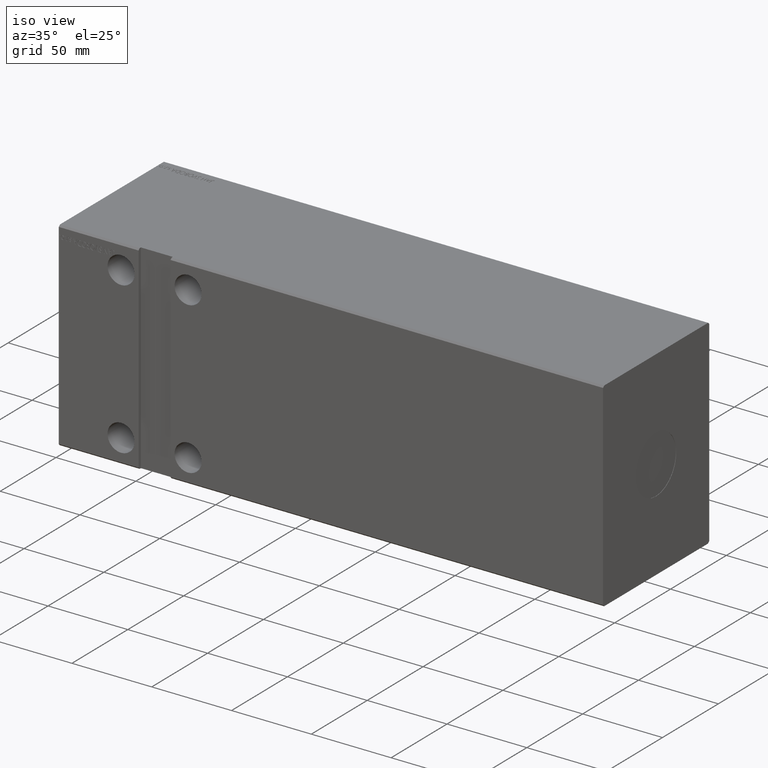
[diagram: clean part render]
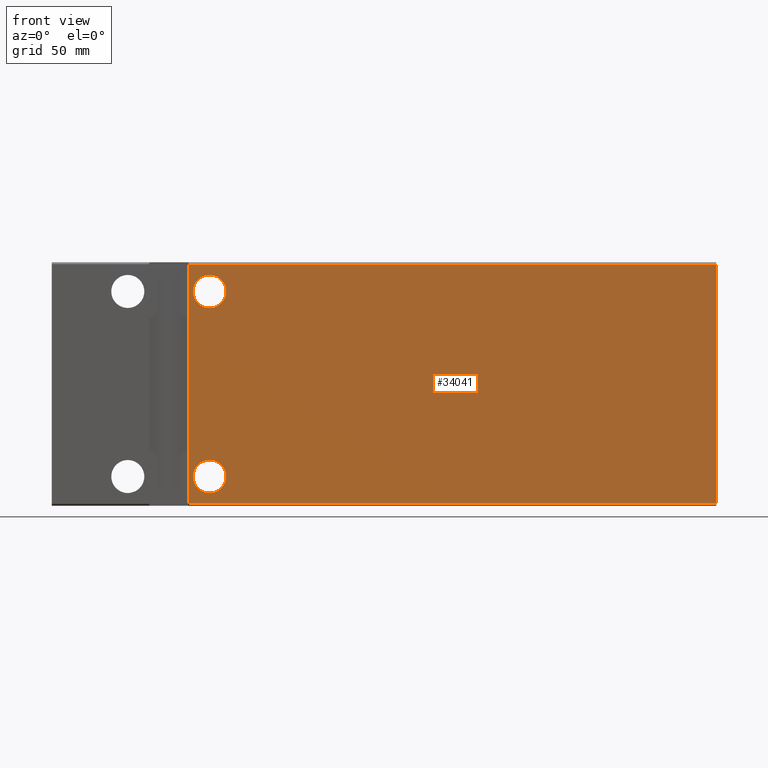
[diagram: tour spotlight — one face highlighted and labeled with its STEP entity id]
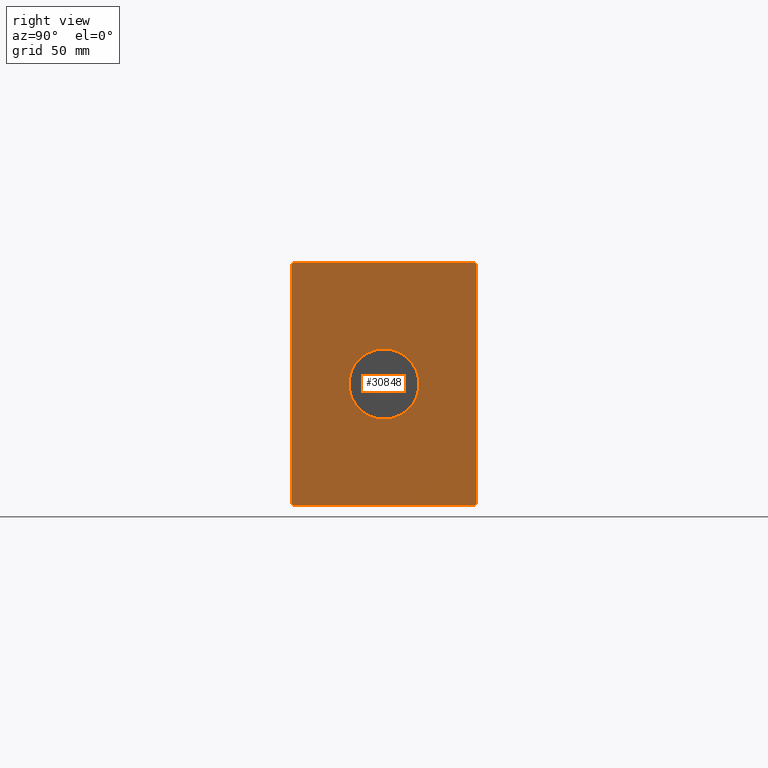
[diagram: tour spotlight — one face highlighted and labeled with its STEP entity id]
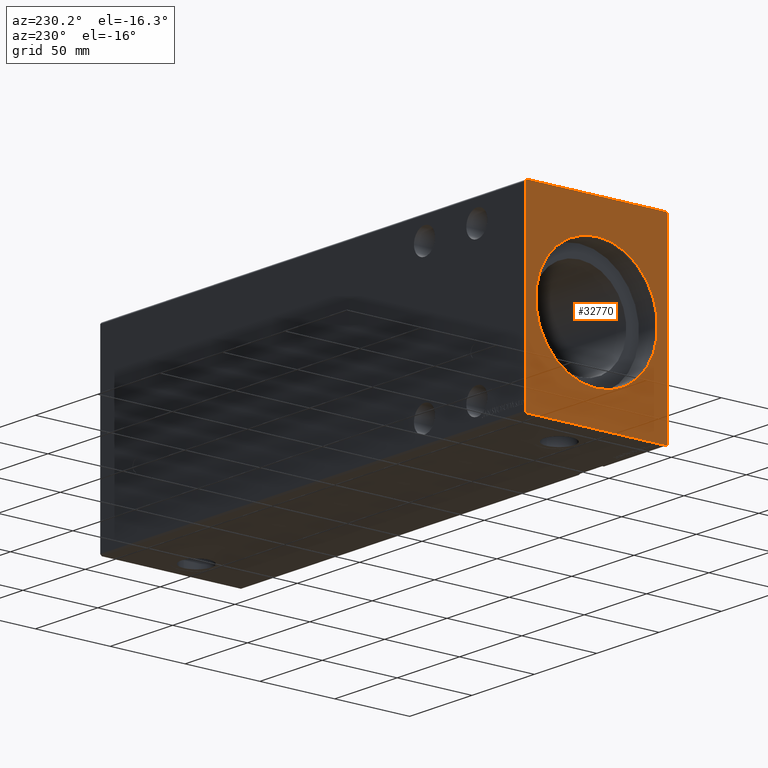
[diagram: tour spotlight — one face highlighted and labeled with its STEP entity id]
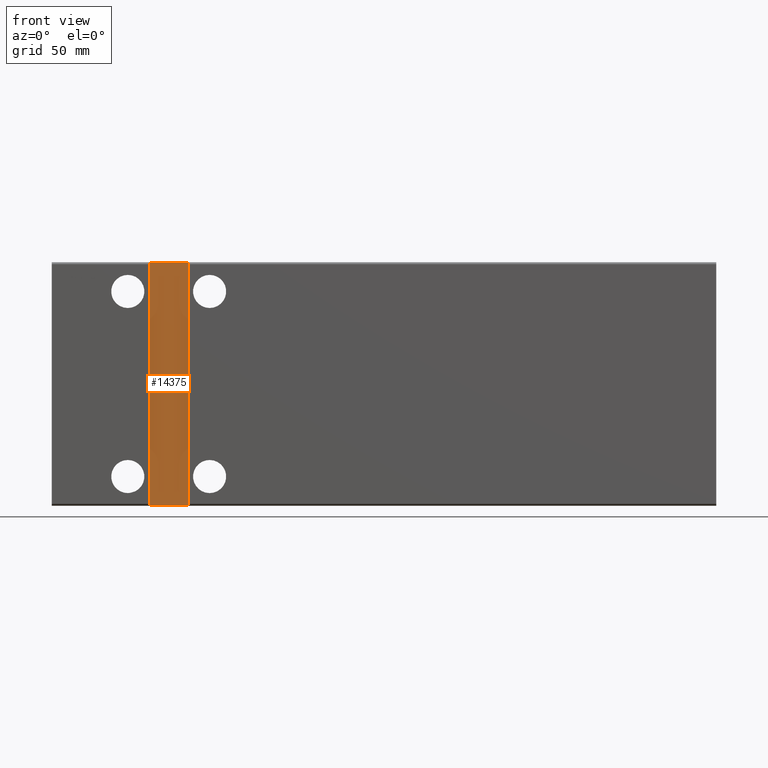
[diagram: tour spotlight — one face highlighted and labeled with its STEP entity id]
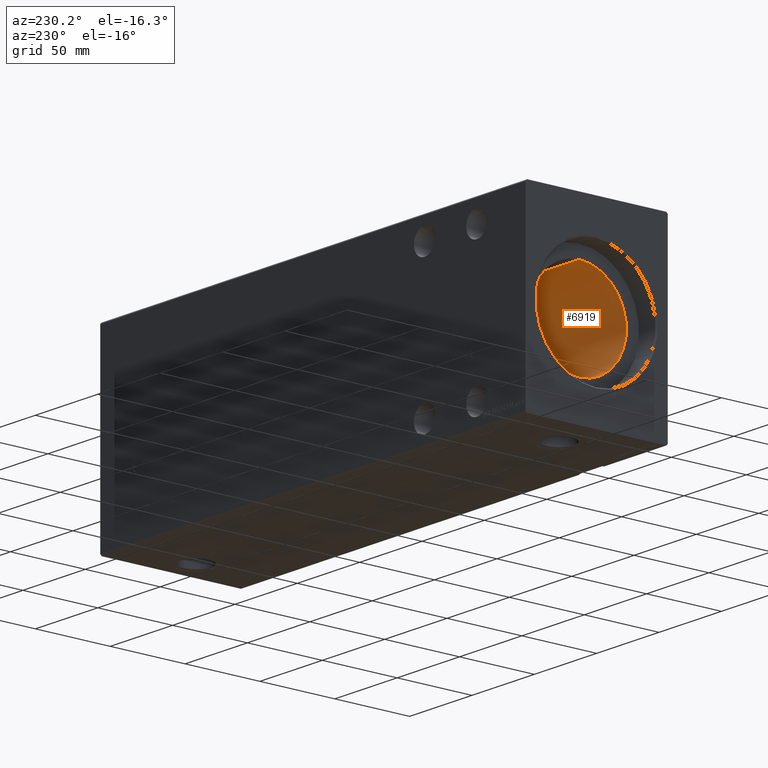
[diagram: tour spotlight — one face highlighted and labeled with its STEP entity id]
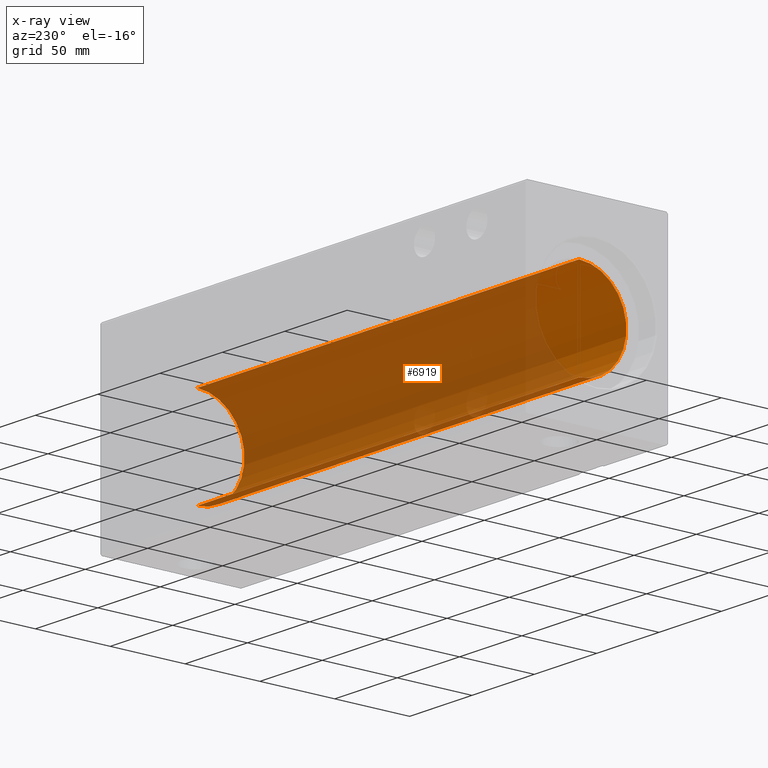
[diagram: x-ray of the same camera — body ghosted, this tour face saturated]
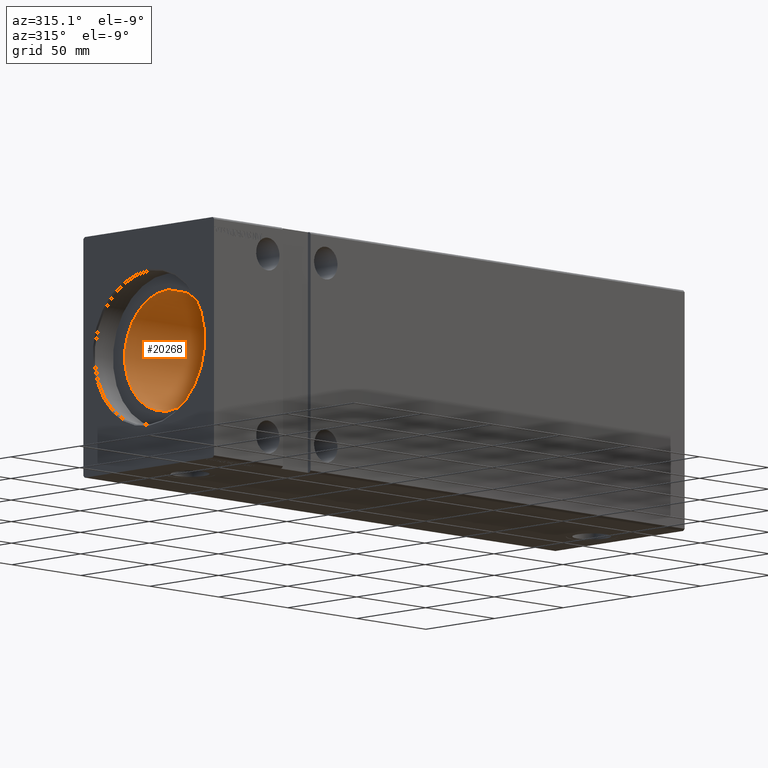
[diagram: tour spotlight — one face highlighted and labeled with its STEP entity id]
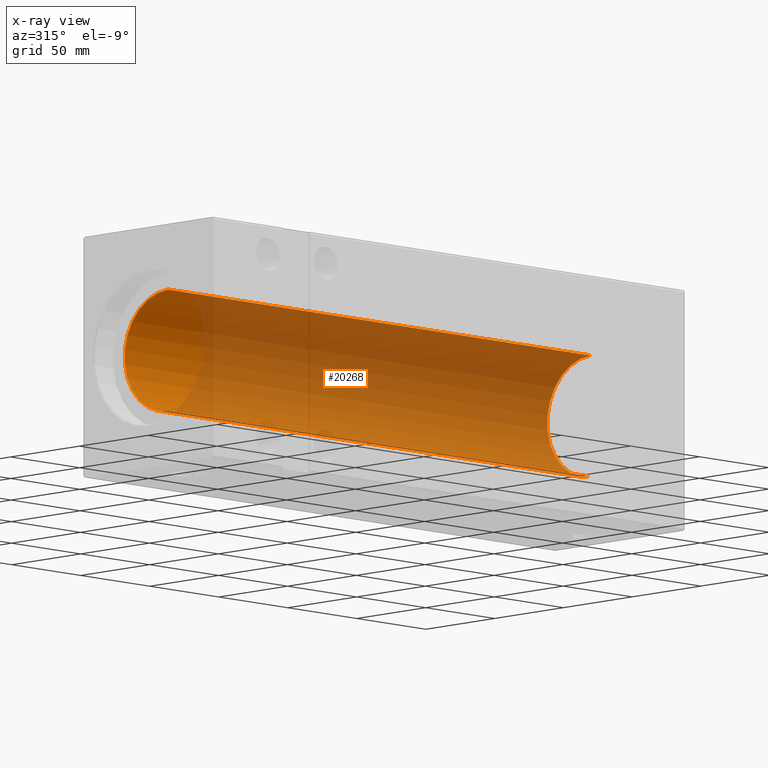
[diagram: x-ray of the same camera — body ghosted, this tour face saturated]
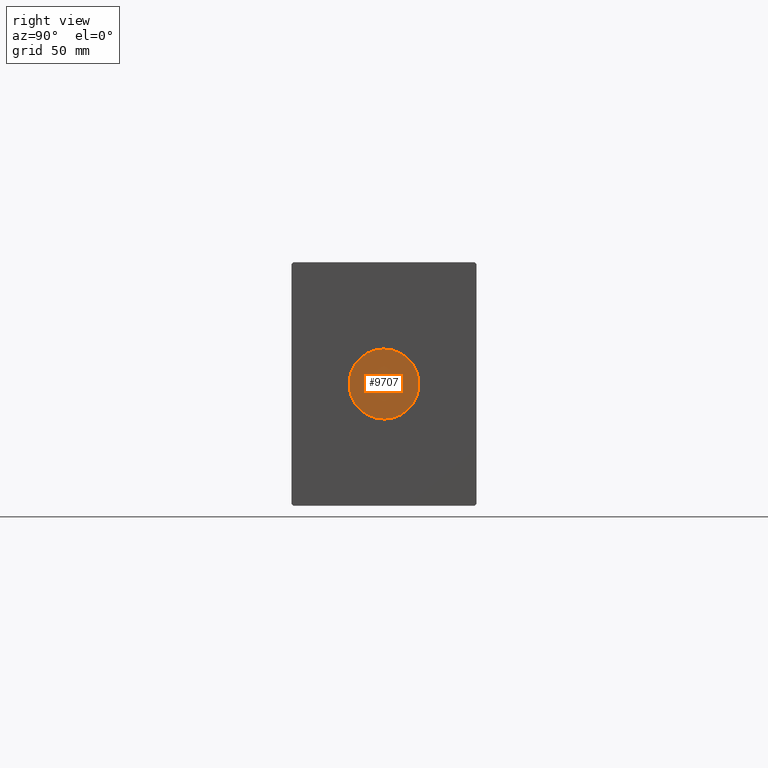
[diagram: tour spotlight — one face highlighted and labeled with its STEP entity id]
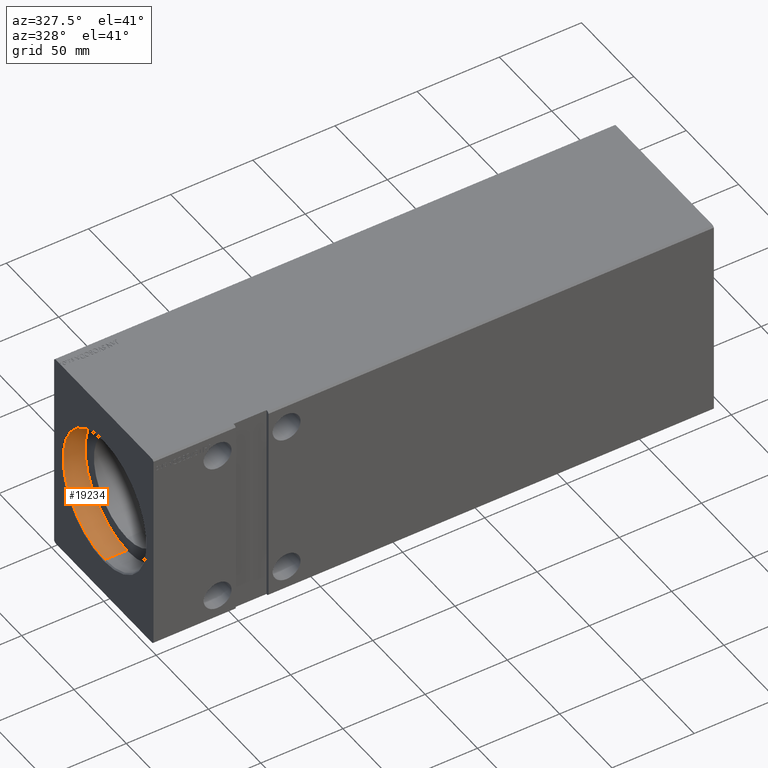
[diagram: tour spotlight — one face highlighted and labeled with its STEP entity id]
A machine part: a face-by-face anatomy tour. The part has 805 B-rep faces; the first image is the clean iso view, then the 8 largest visible faces are spotlighted one at a time (largest first), each with its STEP entity span.

Face 1 — front view, entity #34041. In plain terms, the highlighted planar face has unit normal (-0, 1, 0).
Definition (entity closure, byte-faithful):
#453 = ORIENTED_EDGE ( 'NONE', *, *, #1299, .F. ) ;
#500 = VECTOR ( 'NONE', #3767, 1000.000000000000000 ) ;
#782 = CARTESIAN_POINT ( 'NONE',  ( 70.00000000000000000, -47.50000000000000000, 62.49999999999997868 ) ) ;
#1299 = EDGE_CURVE ( 'NONE', #41389, #40538, #21749, .T. ) ;
#1970 = DIRECTION ( 'NONE',  ( -1.000000000000000000, -0.000000000000000000, -0.000000000000000000 ) ) ;
#2248 = LINE ( 'NONE', #2861, #37254 ) ;
#2770 = EDGE_CURVE ( 'NONE', #19334, #20825, #14287, .T. ) ;
#2861 = CARTESIAN_POINT ( 'NONE',  ( 341.0000000000000000, -47.50000000000001421, 61.49999999999997868 ) ) ;
#3258 = VERTEX_POINT ( 'NONE', #21459 ) ;
#3767 = DIRECTION ( 'NONE',  ( -2.220446049250313081E-16, -0.000000000000000000, 1.000000000000000000 ) ) ;
#4053 = FACE_BOUND ( 'NONE', #22180, .T. ) ;
#6550 = CIRCLE ( 'NONE', #41300, 8.500000000000000000 ) ;
#6947 = CARTESIAN_POINT ( 'NONE',  ( 81.00000000000000000, -47.50000000000001421, 38.99999999999999289 ) ) ;
#6989 = CARTESIAN_POINT ( 'NONE',  ( 81.00000000000000000, -47.50000000000001421, 55.99999999999999289 ) ) ;
#7255 = CARTESIAN_POINT ( 'NONE',  ( 341.0000000000000000, -47.50000000000001421, 61.49999999999997868 ) ) ;
#10553 = VERTEX_POINT ( 'NONE', #37784 ) ;
#10913 = CARTESIAN_POINT ( 'NONE',  ( 81.00000000000000000, -47.50000000000001421, 47.49999999999999289 ) ) ;
#12028 = CARTESIAN_POINT ( 'NONE',  ( 341.0000000000000000, -47.49999999999999289, -61.50000000000001421 ) ) ;
#12825 = VERTEX_POINT ( 'NONE', #13407 ) ;
#13407 = CARTESIAN_POINT ( 'NONE',  ( 341.0000000000000000, -47.49999999999999289, -61.50000000000001421 ) ) ;
#13901 = AXIS2_PLACEMENT_3D ( 'NONE', #17746, #40988, #14766 ) ;
#14287 = CIRCLE ( 'NONE', #19725, 8.500000000000007105 ) ;
#14766 = DIRECTION ( 'NONE',  ( 0.000000000000000000, 0.000000000000000000, 1.000000000000000000 ) ) ;
#15431 = LINE ( 'NONE', #12028, #37772 ) ;
#16184 = ORIENTED_EDGE ( 'NONE', *, *, #2770, .T. ) ;
#16218 = DIRECTION ( 'NONE',  ( -0.000000000000000000, 1.000000000000000000, 1.692413147294446463E-16 ) ) ;
#16636 = DIRECTION ( 'NONE',  ( 0.000000000000000000, -1.692413147294446463E-16, 1.000000000000000000 ) ) ;
#16785 = EDGE_CURVE ( 'NONE', #10553, #3258, #30769, .T. ) ;
#16962 = EDGE_LOOP ( 'NONE', ( #16184, #27053 ) ) ;
#17290 = ORIENTED_EDGE ( 'NONE', *, *, #32681, .F. ) ;
#17423 = DIRECTION ( 'NONE',  ( 0.000000000000000000, 0.000000000000000000, 1.000000000000000000 ) ) ;
#17527 = DIRECTION ( 'NONE',  ( 0.000000000000000000, 0.000000000000000000, 1.000000000000000000 ) ) ;
#17746 = CARTESIAN_POINT ( 'NONE',  ( 81.00000000000001421, -47.50000000000000000, -47.50000000000000711 ) ) ;
#18491 = EDGE_CURVE ( 'NONE', #10553, #12825, #2248, .T. ) ;
#19334 = VERTEX_POINT ( 'NONE', #33573 ) ;
#19700 = AXIS2_PLACEMENT_3D ( 'NONE', #36830, #30017, #17423 ) ;
#19725 = AXIS2_PLACEMENT_3D ( 'NONE', #25616, #16218, #29237 ) ;
#19759 = EDGE_CURVE ( 'NONE', #37350, #3258, #32988, .T. ) ;
#19796 = ORIENTED_EDGE ( 'NONE', *, *, #16785, .T. ) ;
#19842 = PLANE ( 'NONE',  #30271 ) ;
#20456 = CARTESIAN_POINT ( 'NONE',  ( 81.00000000000001421, -47.50000000000000000, -39.00000000000000000 ) ) ;
#20825 = VERTEX_POINT ( 'NONE', #20456 ) ;
#21459 = CARTESIAN_POINT ( 'NONE',  ( 70.00000000000000000, -47.50000000000000000, 61.49999999999999289 ) ) ;
#21749 = CIRCLE ( 'NONE', #19700, 8.500000000000000000 ) ;
#22180 = EDGE_LOOP ( 'NONE', ( #453, #17290 ) ) ;
#23037 = FACE_OUTER_BOUND ( 'NONE', #29331, .T. ) ;
#23245 = FACE_BOUND ( 'NONE', #16962, .T. ) ;
#23447 = CARTESIAN_POINT ( 'NONE',  ( 70.00000000000002842, -47.50000000000000000, -61.50000000000002132 ) ) ;
#25616 = CARTESIAN_POINT ( 'NONE',  ( 81.00000000000001421, -47.50000000000000000, -47.50000000000000711 ) ) ;
#26656 = EDGE_CURVE ( 'NONE', #12825, #37350, #15431, .T. ) ;
#27053 = ORIENTED_EDGE ( 'NONE', *, *, #38553, .T. ) ;
#28186 = CARTESIAN_POINT ( 'NONE',  ( 341.0000000000000000, -47.50000000000001421, 61.49999999999997868 ) ) ;
#29237 = DIRECTION ( 'NONE',  ( 0.000000000000000000, 0.000000000000000000, 1.000000000000000000 ) ) ;
#29331 = EDGE_LOOP ( 'NONE', ( #19796, #32548, #29683, #39267 ) ) ;
#29683 = ORIENTED_EDGE ( 'NONE', *, *, #26656, .F. ) ;
#30017 = DIRECTION ( 'NONE',  ( 0.000000000000000000, -1.000000000000000000, -1.692413147294446463E-16 ) ) ;
#30087 = DIRECTION ( 'NONE',  ( -0.000000000000000000, 1.000000000000000000, 1.692413147294446463E-16 ) ) ;
#30271 = AXIS2_PLACEMENT_3D ( 'NONE', #7255, #30087, #16636 ) ;
#30769 = LINE ( 'NONE', #28186, #35700 ) ;
#31645 = DIRECTION ( 'NONE',  ( -1.000000000000000000, -0.000000000000000000, -0.000000000000000000 ) ) ;
#32293 = CIRCLE ( 'NONE', #13901, 8.500000000000007105 ) ;
#32548 = ORIENTED_EDGE ( 'NONE', *, *, #19759, .F. ) ;
#32681 = EDGE_CURVE ( 'NONE', #40538, #41389, #6550, .T. ) ;
#32988 = LINE ( 'NONE', #782, #500 ) ;
#33573 = CARTESIAN_POINT ( 'NONE',  ( 81.00000000000001421, -47.50000000000000000, -56.00000000000001421 ) ) ;
#33743 = DIRECTION ( 'NONE',  ( 0.000000000000000000, -1.000000000000000000, -1.692413147294446463E-16 ) ) ;
#34041 = ADVANCED_FACE ( 'NONE', ( #23245, #23037, #4053 ), #19842, .F. ) ;
#35700 = VECTOR ( 'NONE', #1970, 1000.000000000000000 ) ;
#36830 = CARTESIAN_POINT ( 'NONE',  ( 81.00000000000000000, -47.50000000000001421, 47.49999999999999289 ) ) ;
#37254 = VECTOR ( 'NONE', #41277, 1000.000000000000000 ) ;
#37350 = VERTEX_POINT ( 'NONE', #23447 ) ;
#37772 = VECTOR ( 'NONE', #31645, 1000.000000000000000 ) ;
#37784 = CARTESIAN_POINT ( 'NONE',  ( 341.0000000000000000, -47.50000000000001421, 61.49999999999997868 ) ) ;
#38553 = EDGE_CURVE ( 'NONE', #20825, #19334, #32293, .T. ) ;
#39267 = ORIENTED_EDGE ( 'NONE', *, *, #18491, .F. ) ;
#40538 = VERTEX_POINT ( 'NONE', #6989 ) ;
#40988 = DIRECTION ( 'NONE',  ( -0.000000000000000000, 1.000000000000000000, 1.692413147294446463E-16 ) ) ;
#41277 = DIRECTION ( 'NONE',  ( 0.000000000000000000, 1.692413147294445970E-16, -1.000000000000000000 ) ) ;
#41300 = AXIS2_PLACEMENT_3D ( 'NONE', #10913, #33743, #17527 ) ;
#41389 = VERTEX_POINT ( 'NONE', #6947 ) ;

Face 2 — right view, entity #30848. In plain terms, the highlighted planar face has unit normal (1, 0, 0).
Definition (entity closure, byte-faithful):
#853 = CARTESIAN_POINT ( 'NONE',  ( 341.0000000000000000, -46.50000000000001421, 62.49999999999997868 ) ) ;
#1159 = DIRECTION ( 'NONE',  ( 0.000000000000000000, -1.128275431529630729E-16, 1.000000000000000000 ) ) ;
#1303 = CARTESIAN_POINT ( 'NONE',  ( 341.0000000000000000, -46.50000000000000000, -62.50000000000001421 ) ) ;
#1737 = DIRECTION ( 'NONE',  ( 0.000000000000000000, 0.000000000000000000, -1.000000000000000000 ) ) ;
#2248 = LINE ( 'NONE', #2861, #37254 ) ;
#2295 = CARTESIAN_POINT ( 'NONE',  ( 341.0000000000000000, 47.50000000000001421, -61.50000000000001421 ) ) ;
#2861 = CARTESIAN_POINT ( 'NONE',  ( 341.0000000000000000, -47.50000000000001421, 61.49999999999997868 ) ) ;
#3038 = LINE ( 'NONE', #35452, #36383 ) ;
#3500 = CIRCLE ( 'NONE', #27346, 18.00000000000000000 ) ;
#3598 = EDGE_CURVE ( 'NONE', #13685, #18179, #24594, .T. ) ;
#5198 = DIRECTION ( 'NONE',  ( 0.000000000000000000, 0.7071067811865574537, 0.7071067811865376918 ) ) ;
#5346 = DIRECTION ( 'NONE',  ( 1.000000000000000000, 0.000000000000000000, 0.000000000000000000 ) ) ;
#5746 = VERTEX_POINT ( 'NONE', #853 ) ;
#5798 = DIRECTION ( 'NONE',  ( 1.000000000000000000, 0.000000000000000000, 0.000000000000000000 ) ) ;
#7002 = CIRCLE ( 'NONE', #32206, 18.00000000000000000 ) ;
#7279 = CARTESIAN_POINT ( 'NONE',  ( 341.0000000000000000, 47.50000000000000000, 61.49999999999998579 ) ) ;
#7747 = ORIENTED_EDGE ( 'NONE', *, *, #8797, .F. ) ;
#8467 = EDGE_LOOP ( 'NONE', ( #15566, #19582, #8971, #26885, #26001, #21227, #21168, #19913 ) ) ;
#8529 = CARTESIAN_POINT ( 'NONE',  ( 341.0000000000000000, 47.50000000000000000, 61.49999999999998579 ) ) ;
#8594 = VERTEX_POINT ( 'NONE', #33997 ) ;
#8760 = EDGE_CURVE ( 'NONE', #30485, #30048, #16664, .T. ) ;
#8797 = EDGE_CURVE ( 'NONE', #8594, #24473, #3500, .T. ) ;
#8971 = ORIENTED_EDGE ( 'NONE', *, *, #31391, .T. ) ;
#9056 = VECTOR ( 'NONE', #36757, 1000.000000000000114 ) ;
#9113 = VECTOR ( 'NONE', #1159, 1000.000000000000000 ) ;
#10553 = VERTEX_POINT ( 'NONE', #37784 ) ;
#10750 = CARTESIAN_POINT ( 'NONE',  ( 341.0000000000000000, 47.50000000000001421, -61.50000000000001421 ) ) ;
#10890 = LINE ( 'NONE', #1303, #20877 ) ;
#11096 = DIRECTION ( 'NONE',  ( 0.000000000000000000, -0.7071067811865474617, -0.7071067811865474617 ) ) ;
#11665 = DIRECTION ( 'NONE',  ( 1.000000000000000000, 0.000000000000000000, 0.000000000000000000 ) ) ;
#12397 = DIRECTION ( 'NONE',  ( 0.000000000000000000, 0.000000000000000000, -1.000000000000000000 ) ) ;
#12589 = EDGE_CURVE ( 'NONE', #24473, #8594, #7002, .T. ) ;
#12825 = VERTEX_POINT ( 'NONE', #13407 ) ;
#13168 = EDGE_CURVE ( 'NONE', #12825, #33170, #33146, .T. ) ;
#13407 = CARTESIAN_POINT ( 'NONE',  ( 341.0000000000000000, -47.49999999999999289, -61.50000000000001421 ) ) ;
#13469 = DIRECTION ( 'NONE',  ( 0.000000000000000000, -0.7071067811865474617, 0.7071067811865474617 ) ) ;
#13685 = VERTEX_POINT ( 'NONE', #32873 ) ;
#14337 = ORIENTED_EDGE ( 'NONE', *, *, #12589, .F. ) ;
#14343 = CARTESIAN_POINT ( 'NONE',  ( 341.0000000000000000, 46.50000000000000000, 62.49999999999998579 ) ) ;
#15077 = DIRECTION ( 'NONE',  ( 0.000000000000000000, 0.000000000000000000, -1.000000000000000000 ) ) ;
#15252 = EDGE_CURVE ( 'NONE', #18179, #30485, #29519, .T. ) ;
#15566 = ORIENTED_EDGE ( 'NONE', *, *, #8760, .T. ) ;
#16664 = LINE ( 'NONE', #7279, #34838 ) ;
#16863 = CARTESIAN_POINT ( 'NONE',  ( 341.0000000000000000, -46.50000000000001421, 62.49999999999997868 ) ) ;
#17499 = DIRECTION ( 'NONE',  ( 0.000000000000000000, 1.000000000000000000, 1.492235248152092278E-16 ) ) ;
#18179 = VERTEX_POINT ( 'NONE', #2295 ) ;
#18491 = EDGE_CURVE ( 'NONE', #10553, #12825, #2248, .T. ) ;
#19582 = ORIENTED_EDGE ( 'NONE', *, *, #25917, .T. ) ;
#19913 = ORIENTED_EDGE ( 'NONE', *, *, #15252, .T. ) ;
#20765 = CARTESIAN_POINT ( 'NONE',  ( 341.0000000000000000, -47.49999999999999289, -61.50000000000001421 ) ) ;
#20877 = VECTOR ( 'NONE', #17499, 1000.000000000000000 ) ;
#21168 = ORIENTED_EDGE ( 'NONE', *, *, #3598, .T. ) ;
#21227 = ORIENTED_EDGE ( 'NONE', *, *, #31384, .T. ) ;
#24256 = CARTESIAN_POINT ( 'NONE',  ( 341.0000000000000000, 0.000000000000000000, 0.000000000000000000 ) ) ;
#24473 = VERTEX_POINT ( 'NONE', #33404 ) ;
#24594 = LINE ( 'NONE', #34001, #37485 ) ;
#24884 = PLANE ( 'NONE',  #29672 ) ;
#25917 = EDGE_CURVE ( 'NONE', #30048, #5746, #3038, .T. ) ;
#26001 = ORIENTED_EDGE ( 'NONE', *, *, #13168, .T. ) ;
#26885 = ORIENTED_EDGE ( 'NONE', *, *, #18491, .T. ) ;
#27346 = AXIS2_PLACEMENT_3D ( 'NONE', #34572, #5346, #1737 ) ;
#29519 = LINE ( 'NONE', #10750, #9113 ) ;
#29672 = AXIS2_PLACEMENT_3D ( 'NONE', #24256, #11665, #15077 ) ;
#30048 = VERTEX_POINT ( 'NONE', #14343 ) ;
#30405 = EDGE_LOOP ( 'NONE', ( #14337, #7747 ) ) ;
#30417 = VECTOR ( 'NONE', #11096, 1000.000000000000114 ) ;
#30485 = VERTEX_POINT ( 'NONE', #8529 ) ;
#30848 = ADVANCED_FACE ( 'NONE', ( #37276, #37908 ), #24884, .T. ) ;
#31384 = EDGE_CURVE ( 'NONE', #33170, #13685, #10890, .T. ) ;
#31391 = EDGE_CURVE ( 'NONE', #5746, #10553, #36270, .T. ) ;
#32206 = AXIS2_PLACEMENT_3D ( 'NONE', #35014, #5798, #12397 ) ;
#32873 = CARTESIAN_POINT ( 'NONE',  ( 341.0000000000000000, 46.50000000000000000, -62.50000000000000000 ) ) ;
#32899 = CARTESIAN_POINT ( 'NONE',  ( 341.0000000000000000, -46.50000000000000000, -62.50000000000001421 ) ) ;
#33146 = LINE ( 'NONE', #20765, #9056 ) ;
#33170 = VERTEX_POINT ( 'NONE', #32899 ) ;
#33404 = CARTESIAN_POINT ( 'NONE',  ( 341.0000000000000000, 0.000000000000000000, -18.00000000000000000 ) ) ;
#33997 = CARTESIAN_POINT ( 'NONE',  ( 341.0000000000000000, 2.204364238465235428E-15, 18.00000000000000000 ) ) ;
#34001 = CARTESIAN_POINT ( 'NONE',  ( 341.0000000000000000, 46.50000000000000000, -62.50000000000000000 ) ) ;
#34572 = CARTESIAN_POINT ( 'NONE',  ( 341.0000000000000000, 0.000000000000000000, 0.000000000000000000 ) ) ;
#34838 = VECTOR ( 'NONE', #13469, 1000.000000000000114 ) ;
#35014 = CARTESIAN_POINT ( 'NONE',  ( 341.0000000000000000, 0.000000000000000000, 0.000000000000000000 ) ) ;
#35452 = CARTESIAN_POINT ( 'NONE',  ( 341.0000000000000000, 46.50000000000000000, 62.49999999999998579 ) ) ;
#35655 = DIRECTION ( 'NONE',  ( 0.000000000000000000, -1.000000000000000000, -7.461176240760460157E-17 ) ) ;
#36270 = LINE ( 'NONE', #16863, #30417 ) ;
#36383 = VECTOR ( 'NONE', #35655, 1000.000000000000000 ) ;
#36757 = DIRECTION ( 'NONE',  ( 0.000000000000000000, 0.7071067811865451302, -0.7071067811865500152 ) ) ;
#37254 = VECTOR ( 'NONE', #41277, 1000.000000000000000 ) ;
#37276 = FACE_BOUND ( 'NONE', #30405, .T. ) ;
#37485 = VECTOR ( 'NONE', #5198, 999.9999999999998863 ) ;
#37784 = CARTESIAN_POINT ( 'NONE',  ( 341.0000000000000000, -47.50000000000001421, 61.49999999999997868 ) ) ;
#37908 = FACE_OUTER_BOUND ( 'NONE', #8467, .T. ) ;
#41277 = DIRECTION ( 'NONE',  ( 0.000000000000000000, 1.692413147294445970E-16, -1.000000000000000000 ) ) ;

Face 3 — auxiliary view, entity #32770. In plain terms, the highlighted planar face has unit normal (1, 0, 0).
Definition (entity closure, byte-faithful):
#129 = VERTEX_POINT ( 'NONE', #27334 ) ;
#291 = CARTESIAN_POINT ( 'NONE',  ( 0.000000000000000000, -46.50000000000001421, 62.49999999999997868 ) ) ;
#561 = EDGE_CURVE ( 'NONE', #4607, #14561, #28288, .T. ) ;
#1548 = LINE ( 'NONE', #23722, #26842 ) ;
#1784 = ORIENTED_EDGE ( 'NONE', *, *, #28578, .F. ) ;
#2949 = CARTESIAN_POINT ( 'NONE',  ( 0.000000000000000000, 46.50000000000000000, 62.49999999999998579 ) ) ;
#3136 = DIRECTION ( 'NONE',  ( 1.000000000000000000, 0.000000000000000000, 0.000000000000000000 ) ) ;
#3137 = EDGE_LOOP ( 'NONE', ( #32295, #28400 ) ) ;
#3624 = LINE ( 'NONE', #6613, #15356 ) ;
#4515 = AXIS2_PLACEMENT_3D ( 'NONE', #38399, #25174, #18161 ) ;
#4607 = VERTEX_POINT ( 'NONE', #7077 ) ;
#4783 = VERTEX_POINT ( 'NONE', #13003 ) ;
#5722 = DIRECTION ( 'NONE',  ( 0.000000000000000000, 1.000000000000000000, 1.492235248152092278E-16 ) ) ;
#6327 = CARTESIAN_POINT ( 'NONE',  ( 0.000000000000000000, 0.000000000000000000, 0.000000000000000000 ) ) ;
#6477 = VERTEX_POINT ( 'NONE', #16256 ) ;
#6613 = CARTESIAN_POINT ( 'NONE',  ( 0.000000000000000000, 47.50000000000001421, -61.50000000000001421 ) ) ;
#7077 = CARTESIAN_POINT ( 'NONE',  ( 0.000000000000000000, -47.50000000000001421, 61.49999999999997868 ) ) ;
#8181 = CARTESIAN_POINT ( 'NONE',  ( 0.000000000000000000, 46.50000000000000000, 62.49999999999998579 ) ) ;
#8562 = FACE_BOUND ( 'NONE', #3137, .T. ) ;
#8604 = DIRECTION ( 'NONE',  ( 0.000000000000000000, -1.000000000000000000, -7.461176240760460157E-17 ) ) ;
#9360 = LINE ( 'NONE', #21934, #10062 ) ;
#9846 = AXIS2_PLACEMENT_3D ( 'NONE', #6327, #3136, #16132 ) ;
#10062 = VECTOR ( 'NONE', #5722, 1000.000000000000000 ) ;
#11235 = DIRECTION ( 'NONE',  ( 0.000000000000000000, 1.692413147294445970E-16, -1.000000000000000000 ) ) ;
#11556 = DIRECTION ( 'NONE',  ( 0.000000000000000000, 0.7071067811865574537, 0.7071067811865376918 ) ) ;
#13003 = CARTESIAN_POINT ( 'NONE',  ( 0.000000000000000000, 46.50000000000000000, -62.50000000000000000 ) ) ;
#13880 = VECTOR ( 'NONE', #19916, 1000.000000000000114 ) ;
#14465 = ORIENTED_EDGE ( 'NONE', *, *, #21754, .F. ) ;
#14521 = VERTEX_POINT ( 'NONE', #19860 ) ;
#14561 = VERTEX_POINT ( 'NONE', #36067 ) ;
#14712 = DIRECTION ( 'NONE',  ( 0.000000000000000000, 0.000000000000000000, -1.000000000000000000 ) ) ;
#15338 = EDGE_CURVE ( 'NONE', #14561, #6477, #32722, .T. ) ;
#15356 = VECTOR ( 'NONE', #16625, 1000.000000000000000 ) ;
#15409 = EDGE_CURVE ( 'NONE', #29545, #17071, #24792, .T. ) ;
#15688 = ORIENTED_EDGE ( 'NONE', *, *, #38516, .F. ) ;
#16132 = DIRECTION ( 'NONE',  ( 0.000000000000000000, 0.000000000000000000, -1.000000000000000000 ) ) ;
#16256 = CARTESIAN_POINT ( 'NONE',  ( 0.000000000000000000, -46.50000000000000000, -62.50000000000001421 ) ) ;
#16625 = DIRECTION ( 'NONE',  ( 0.000000000000000000, -1.128275431529630729E-16, 1.000000000000000000 ) ) ;
#17071 = VERTEX_POINT ( 'NONE', #17490 ) ;
#17091 = CARTESIAN_POINT ( 'NONE',  ( 0.000000000000000000, 47.50000000000001421, -61.50000000000001421 ) ) ;
#17232 = ORIENTED_EDGE ( 'NONE', *, *, #15409, .F. ) ;
#17490 = CARTESIAN_POINT ( 'NONE',  ( 0.000000000000000000, -46.50000000000001421, 62.49999999999997868 ) ) ;
#17800 = LINE ( 'NONE', #24198, #27606 ) ;
#18161 = DIRECTION ( 'NONE',  ( 0.000000000000000000, 0.000000000000000000, -1.000000000000000000 ) ) ;
#18457 = ORIENTED_EDGE ( 'NONE', *, *, #15338, .F. ) ;
#18610 = EDGE_CURVE ( 'NONE', #17071, #4607, #20128, .T. ) ;
#19084 = VERTEX_POINT ( 'NONE', #21078 ) ;
#19860 = CARTESIAN_POINT ( 'NONE',  ( 0.000000000000000000, 0.000000000000000000, 40.69999999999990337 ) ) ;
#19916 = DIRECTION ( 'NONE',  ( 0.000000000000000000, 0.7071067811865451302, -0.7071067811865500152 ) ) ;
#20047 = CIRCLE ( 'NONE', #9846, 40.69999999999990337 ) ;
#20107 = CIRCLE ( 'NONE', #28304, 40.69999999999990337 ) ;
#20128 = LINE ( 'NONE', #291, #38596 ) ;
#20425 = VERTEX_POINT ( 'NONE', #17091 ) ;
#20799 = DIRECTION ( 'NONE',  ( 0.000000000000000000, -0.7071067811865474617, 0.7071067811865474617 ) ) ;
#21078 = CARTESIAN_POINT ( 'NONE',  ( 0.000000000000000000, 4.984312472529715481E-15, -40.69999999999990337 ) ) ;
#21468 = CARTESIAN_POINT ( 'NONE',  ( 0.000000000000000000, -47.50000000000001421, 61.49999999999997868 ) ) ;
#21754 = EDGE_CURVE ( 'NONE', #6477, #4783, #9360, .T. ) ;
#21934 = CARTESIAN_POINT ( 'NONE',  ( 0.000000000000000000, -46.50000000000000000, -62.50000000000001421 ) ) ;
#22998 = EDGE_CURVE ( 'NONE', #19084, #14521, #20047, .T. ) ;
#23699 = VECTOR ( 'NONE', #11235, 1000.000000000000000 ) ;
#23722 = CARTESIAN_POINT ( 'NONE',  ( 0.000000000000000000, 46.50000000000000000, -62.50000000000000000 ) ) ;
#23783 = ORIENTED_EDGE ( 'NONE', *, *, #29162, .F. ) ;
#24198 = CARTESIAN_POINT ( 'NONE',  ( 0.000000000000000000, 47.50000000000000000, 61.49999999999998579 ) ) ;
#24792 = LINE ( 'NONE', #8181, #41798 ) ;
#25174 = DIRECTION ( 'NONE',  ( 1.000000000000000000, 0.000000000000000000, 0.000000000000000000 ) ) ;
#25380 = PLANE ( 'NONE',  #4515 ) ;
#26418 = ORIENTED_EDGE ( 'NONE', *, *, #561, .F. ) ;
#26842 = VECTOR ( 'NONE', #11556, 999.9999999999998863 ) ;
#27334 = CARTESIAN_POINT ( 'NONE',  ( 0.000000000000000000, 47.50000000000000000, 61.49999999999998579 ) ) ;
#27606 = VECTOR ( 'NONE', #20799, 1000.000000000000114 ) ;
#28288 = LINE ( 'NONE', #21468, #23699 ) ;
#28304 = AXIS2_PLACEMENT_3D ( 'NONE', #30704, #37521, #14712 ) ;
#28400 = ORIENTED_EDGE ( 'NONE', *, *, #22998, .T. ) ;
#28578 = EDGE_CURVE ( 'NONE', #20425, #129, #3624, .T. ) ;
#28726 = EDGE_CURVE ( 'NONE', #14521, #19084, #20107, .T. ) ;
#29162 = EDGE_CURVE ( 'NONE', #129, #29545, #17800, .T. ) ;
#29545 = VERTEX_POINT ( 'NONE', #2949 ) ;
#30704 = CARTESIAN_POINT ( 'NONE',  ( 0.000000000000000000, 0.000000000000000000, 0.000000000000000000 ) ) ;
#30897 = EDGE_LOOP ( 'NONE', ( #23783, #1784, #15688, #14465, #18457, #26418, #31207, #17232 ) ) ;
#31207 = ORIENTED_EDGE ( 'NONE', *, *, #18610, .F. ) ;
#32295 = ORIENTED_EDGE ( 'NONE', *, *, #28726, .T. ) ;
#32722 = LINE ( 'NONE', #36331, #13880 ) ;
#32770 = ADVANCED_FACE ( 'NONE', ( #8562, #34370 ), #25380, .F. ) ;
#32925 = DIRECTION ( 'NONE',  ( 0.000000000000000000, -0.7071067811865474617, -0.7071067811865474617 ) ) ;
#34370 = FACE_OUTER_BOUND ( 'NONE', #30897, .T. ) ;
#36067 = CARTESIAN_POINT ( 'NONE',  ( 0.000000000000000000, -47.49999999999999289, -61.50000000000001421 ) ) ;
#36331 = CARTESIAN_POINT ( 'NONE',  ( 0.000000000000000000, -47.49999999999999289, -61.50000000000001421 ) ) ;
#37521 = DIRECTION ( 'NONE',  ( 1.000000000000000000, 0.000000000000000000, 0.000000000000000000 ) ) ;
#38399 = CARTESIAN_POINT ( 'NONE',  ( 0.000000000000000000, 0.000000000000000000, 0.000000000000000000 ) ) ;
#38516 = EDGE_CURVE ( 'NONE', #4783, #20425, #1548, .T. ) ;
#38596 = VECTOR ( 'NONE', #32925, 1000.000000000000114 ) ;
#41798 = VECTOR ( 'NONE', #8604, 1000.000000000000000 ) ;

Face 4 — front view, entity #14375. In plain terms, the highlighted planar face has unit normal (0, -1, 0).
Definition (entity closure, byte-faithful):
#1744 = EDGE_CURVE ( 'NONE', #36028, #11255, #12034, .T. ) ;
#1819 = CARTESIAN_POINT ( 'NONE',  ( 49.99999999999998579, -45.50000000000000000, 62.49999999999997868 ) ) ;
#3617 = DIRECTION ( 'NONE',  ( -2.220446049250313081E-16, -0.000000000000000000, 1.000000000000000000 ) ) ;
#4547 = FACE_OUTER_BOUND ( 'NONE', #17609, .T. ) ;
#4790 = LINE ( 'NONE', #32009, #32298 ) ;
#5182 = CARTESIAN_POINT ( 'NONE',  ( 0.000000000000000000, -45.50000000000000000, 1.101411730778925047E-16 ) ) ;
#7856 = CARTESIAN_POINT ( 'NONE',  ( 70.00000000000002842, -45.50000000000000000, -62.50000000000002842 ) ) ;
#8517 = VECTOR ( 'NONE', #9124, 1000.000000000000000 ) ;
#9124 = DIRECTION ( 'NONE',  ( 5.551115123125782702E-17, 0.000000000000000000, -1.000000000000000000 ) ) ;
#9431 = ORIENTED_EDGE ( 'NONE', *, *, #24573, .T. ) ;
#11255 = VERTEX_POINT ( 'NONE', #32328 ) ;
#12034 = LINE ( 'NONE', #1819, #42200 ) ;
#14375 = ADVANCED_FACE ( 'NONE', ( #4547 ), #27370, .T. ) ;
#14819 = DIRECTION ( 'NONE',  ( -1.000000000000000000, -0.000000000000000000, -0.000000000000000000 ) ) ;
#16649 = ORIENTED_EDGE ( 'NONE', *, *, #33858, .T. ) ;
#17609 = EDGE_LOOP ( 'NONE', ( #41856, #36541, #9431, #16649 ) ) ;
#19826 = LINE ( 'NONE', #32847, #21454 ) ;
#21454 = VECTOR ( 'NONE', #3617, 1000.000000000000000 ) ;
#24491 = VERTEX_POINT ( 'NONE', #28730 ) ;
#24573 = EDGE_CURVE ( 'NONE', #11255, #24491, #38337, .T. ) ;
#25608 = DIRECTION ( 'NONE',  ( 1.000000000000000000, 0.000000000000000000, 0.000000000000000000 ) ) ;
#27114 = VERTEX_POINT ( 'NONE', #7856 ) ;
#27370 = PLANE ( 'NONE',  #30914 ) ;
#27735 = EDGE_CURVE ( 'NONE', #27114, #36028, #19826, .T. ) ;
#28379 = CARTESIAN_POINT ( 'NONE',  ( 70.00000000000000000, -45.50000000000000000, 62.49999999999997868 ) ) ;
#28730 = CARTESIAN_POINT ( 'NONE',  ( 49.99999999999999289, -45.50000000000000000, -62.50000000000002842 ) ) ;
#30914 = AXIS2_PLACEMENT_3D ( 'NONE', #5182, #40379, #34196 ) ;
#32009 = CARTESIAN_POINT ( 'NONE',  ( 49.99999999999999289, -45.50000000000000000, -62.50000000000002842 ) ) ;
#32298 = VECTOR ( 'NONE', #25608, 1000.000000000000000 ) ;
#32328 = CARTESIAN_POINT ( 'NONE',  ( 49.99999999999998579, -45.50000000000000000, 62.49999999999997868 ) ) ;
#32847 = CARTESIAN_POINT ( 'NONE',  ( 70.00000000000000000, -45.50000000000000000, 62.49999999999997868 ) ) ;
#33858 = EDGE_CURVE ( 'NONE', #24491, #27114, #4790, .T. ) ;
#34196 = DIRECTION ( 'NONE',  ( 0.000000000000000000, -0.000000000000000000, -1.000000000000000000 ) ) ;
#36028 = VERTEX_POINT ( 'NONE', #28379 ) ;
#36541 = ORIENTED_EDGE ( 'NONE', *, *, #1744, .T. ) ;
#38337 = LINE ( 'NONE', #38549, #8517 ) ;
#38549 = CARTESIAN_POINT ( 'NONE',  ( 49.99999999999998579, -45.50000000000000000, 62.49999999999997868 ) ) ;
#40379 = DIRECTION ( 'NONE',  ( 0.000000000000000000, -1.000000000000000000, 0.000000000000000000 ) ) ;
#41856 = ORIENTED_EDGE ( 'NONE', *, *, #27735, .T. ) ;
#42200 = VECTOR ( 'NONE', #14819, 1000.000000000000000 ) ;

Face 5 — auxiliary view, entity #6919. An x-ray twin of the same camera follows (body ghosted, this face saturated) — the face is partly hidden behind the body. In plain terms, the highlighted cylindrical surface (partial cylindrical patch) has radius 31.5 mm, axis along (-1, -0, -0).
Definition (entity closure, byte-faithful):
#56 = AXIS2_PLACEMENT_3D ( 'NONE', #31502, #18905, #8891 ) ;
#794 = CIRCLE ( 'NONE', #33472, 31.50000000000000000 ) ;
#943 = DIRECTION ( 'NONE',  ( 0.000000000000000000, 0.000000000000000000, 1.000000000000000000 ) ) ;
#1167 = DIRECTION ( 'NONE',  ( -1.000000000000000000, 0.000000000000000000, 0.000000000000000000 ) ) ;
#1975 = ORIENTED_EDGE ( 'NONE', *, *, #9397, .T. ) ;
#2346 = CARTESIAN_POINT ( 'NONE',  ( 320.1999999999999886, 3.857637417314162689E-15, -31.50000000000000000 ) ) ;
#3529 = CIRCLE ( 'NONE', #28075, 31.50000000000000000 ) ;
#3984 = CARTESIAN_POINT ( 'NONE',  ( 14.00000000000001243, 3.857637417314162689E-15, -31.50000000000000000 ) ) ;
#4030 = VERTEX_POINT ( 'NONE', #3984 ) ;
#6919 = ADVANCED_FACE ( 'NONE', ( #15074 ), #15493, .F. ) ;
#7762 = VECTOR ( 'NONE', #38022, 1000.000000000000000 ) ;
#7836 = DIRECTION ( 'NONE',  ( -1.000000000000000000, -0.000000000000000000, -0.000000000000000000 ) ) ;
#8504 = EDGE_CURVE ( 'NONE', #31452, #19592, #794, .T. ) ;
#8854 = VERTEX_POINT ( 'NONE', #41386 ) ;
#8891 = DIRECTION ( 'NONE',  ( 0.000000000000000000, 0.000000000000000000, 1.000000000000000000 ) ) ;
#9273 = ORIENTED_EDGE ( 'NONE', *, *, #30898, .F. ) ;
#9397 = EDGE_CURVE ( 'NONE', #4030, #8854, #3529, .T. ) ;
#9429 = LINE ( 'NONE', #31411, #7762 ) ;
#10161 = DIRECTION ( 'NONE',  ( 0.000000000000000000, 0.000000000000000000, 1.000000000000000000 ) ) ;
#14494 = EDGE_CURVE ( 'NONE', #31452, #4030, #9429, .T. ) ;
#15074 = FACE_OUTER_BOUND ( 'NONE', #22230, .T. ) ;
#15493 = CYLINDRICAL_SURFACE ( 'NONE', #56, 31.50000000000000000 ) ;
#16934 = CARTESIAN_POINT ( 'NONE',  ( 14.00000000000001243, 0.000000000000000000, 0.000000000000000000 ) ) ;
#18905 = DIRECTION ( 'NONE',  ( -1.000000000000000000, -0.000000000000000000, -0.000000000000000000 ) ) ;
#19592 = VERTEX_POINT ( 'NONE', #35976 ) ;
#21118 = ORIENTED_EDGE ( 'NONE', *, *, #8504, .F. ) ;
#22230 = EDGE_LOOP ( 'NONE', ( #21118, #41702, #1975, #9273 ) ) ;
#22531 = DIRECTION ( 'NONE',  ( -1.000000000000000000, 0.000000000000000000, 0.000000000000000000 ) ) ;
#25735 = CARTESIAN_POINT ( 'NONE',  ( 320.1999999999999886, 0.000000000000000000, 0.000000000000000000 ) ) ;
#27881 = LINE ( 'NONE', #34700, #34465 ) ;
#28075 = AXIS2_PLACEMENT_3D ( 'NONE', #16934, #1167, #943 ) ;
#30898 = EDGE_CURVE ( 'NONE', #19592, #8854, #27881, .T. ) ;
#31411 = CARTESIAN_POINT ( 'NONE',  ( 320.1999999999999886, 3.857637417314162689E-15, -31.50000000000000000 ) ) ;
#31452 = VERTEX_POINT ( 'NONE', #2346 ) ;
#31502 = CARTESIAN_POINT ( 'NONE',  ( 320.1999999999999886, 0.000000000000000000, 0.000000000000000000 ) ) ;
#33472 = AXIS2_PLACEMENT_3D ( 'NONE', #25735, #22531, #10161 ) ;
#34465 = VECTOR ( 'NONE', #7836, 1000.000000000000000 ) ;
#34700 = CARTESIAN_POINT ( 'NONE',  ( 320.1999999999999886, 0.000000000000000000, 31.50000000000000000 ) ) ;
#35976 = CARTESIAN_POINT ( 'NONE',  ( 320.1999999999999886, 0.000000000000000000, 31.50000000000000000 ) ) ;
#38022 = DIRECTION ( 'NONE',  ( -1.000000000000000000, -0.000000000000000000, -0.000000000000000000 ) ) ;
#41386 = CARTESIAN_POINT ( 'NONE',  ( 14.00000000000001243, 0.000000000000000000, 31.50000000000000000 ) ) ;
#41702 = ORIENTED_EDGE ( 'NONE', *, *, #14494, .T. ) ;

Face 6 — auxiliary view, entity #20268. An x-ray twin of the same camera follows (body ghosted, this face saturated) — the face is partly hidden behind the body. In plain terms, the highlighted cylindrical surface (partial cylindrical patch) has radius 31.5 mm, axis along (-1, -0, -0).
Definition (entity closure, byte-faithful):
#86 = CARTESIAN_POINT ( 'NONE',  ( 320.1999999999999886, 0.000000000000000000, 0.000000000000000000 ) ) ;
#1892 = ORIENTED_EDGE ( 'NONE', *, *, #30898, .T. ) ;
#2346 = CARTESIAN_POINT ( 'NONE',  ( 320.1999999999999886, 3.857637417314162689E-15, -31.50000000000000000 ) ) ;
#3009 = AXIS2_PLACEMENT_3D ( 'NONE', #7376, #23587, #4816 ) ;
#3245 = CYLINDRICAL_SURFACE ( 'NONE', #35905, 31.50000000000000000 ) ;
#3984 = CARTESIAN_POINT ( 'NONE',  ( 14.00000000000001243, 3.857637417314162689E-15, -31.50000000000000000 ) ) ;
#4030 = VERTEX_POINT ( 'NONE', #3984 ) ;
#4359 = EDGE_LOOP ( 'NONE', ( #16207, #22069, #1892, #40362 ) ) ;
#4816 = DIRECTION ( 'NONE',  ( 0.000000000000000000, 0.000000000000000000, 1.000000000000000000 ) ) ;
#7376 = CARTESIAN_POINT ( 'NONE',  ( 14.00000000000001243, 0.000000000000000000, 0.000000000000000000 ) ) ;
#7762 = VECTOR ( 'NONE', #38022, 1000.000000000000000 ) ;
#7836 = DIRECTION ( 'NONE',  ( -1.000000000000000000, -0.000000000000000000, -0.000000000000000000 ) ) ;
#8854 = VERTEX_POINT ( 'NONE', #41386 ) ;
#9239 = DIRECTION ( 'NONE',  ( 0.000000000000000000, 0.000000000000000000, 1.000000000000000000 ) ) ;
#9429 = LINE ( 'NONE', #31411, #7762 ) ;
#9905 = DIRECTION ( 'NONE',  ( -1.000000000000000000, 0.000000000000000000, 0.000000000000000000 ) ) ;
#12217 = FACE_OUTER_BOUND ( 'NONE', #4359, .T. ) ;
#13514 = DIRECTION ( 'NONE',  ( 0.000000000000000000, 0.000000000000000000, 1.000000000000000000 ) ) ;
#14494 = EDGE_CURVE ( 'NONE', #31452, #4030, #9429, .T. ) ;
#16207 = ORIENTED_EDGE ( 'NONE', *, *, #14494, .F. ) ;
#16328 = EDGE_CURVE ( 'NONE', #8854, #4030, #21414, .T. ) ;
#18832 = CARTESIAN_POINT ( 'NONE',  ( 320.1999999999999886, 0.000000000000000000, 0.000000000000000000 ) ) ;
#19592 = VERTEX_POINT ( 'NONE', #35976 ) ;
#20268 = ADVANCED_FACE ( 'NONE', ( #12217 ), #3245, .F. ) ;
#21397 = AXIS2_PLACEMENT_3D ( 'NONE', #86, #9905, #13514 ) ;
#21414 = CIRCLE ( 'NONE', #3009, 31.50000000000000000 ) ;
#22069 = ORIENTED_EDGE ( 'NONE', *, *, #22131, .F. ) ;
#22131 = EDGE_CURVE ( 'NONE', #19592, #31452, #27538, .T. ) ;
#23587 = DIRECTION ( 'NONE',  ( -1.000000000000000000, 0.000000000000000000, 0.000000000000000000 ) ) ;
#27538 = CIRCLE ( 'NONE', #21397, 31.50000000000000000 ) ;
#27881 = LINE ( 'NONE', #34700, #34465 ) ;
#30898 = EDGE_CURVE ( 'NONE', #19592, #8854, #27881, .T. ) ;
#31411 = CARTESIAN_POINT ( 'NONE',  ( 320.1999999999999886, 3.857637417314162689E-15, -31.50000000000000000 ) ) ;
#31452 = VERTEX_POINT ( 'NONE', #2346 ) ;
#31844 = DIRECTION ( 'NONE',  ( -1.000000000000000000, -0.000000000000000000, -0.000000000000000000 ) ) ;
#34465 = VECTOR ( 'NONE', #7836, 1000.000000000000000 ) ;
#34700 = CARTESIAN_POINT ( 'NONE',  ( 320.1999999999999886, 0.000000000000000000, 31.50000000000000000 ) ) ;
#35905 = AXIS2_PLACEMENT_3D ( 'NONE', #18832, #31844, #9239 ) ;
#35976 = CARTESIAN_POINT ( 'NONE',  ( 320.1999999999999886, 0.000000000000000000, 31.50000000000000000 ) ) ;
#38022 = DIRECTION ( 'NONE',  ( -1.000000000000000000, -0.000000000000000000, -0.000000000000000000 ) ) ;
#40362 = ORIENTED_EDGE ( 'NONE', *, *, #16328, .T. ) ;
#41386 = CARTESIAN_POINT ( 'NONE',  ( 14.00000000000001243, 0.000000000000000000, 31.50000000000000000 ) ) ;

Face 7 — right view, entity #9707. In plain terms, the highlighted planar face has unit normal (1, 0, 0).
Definition (entity closure, byte-faithful):
#1710 = AXIS2_PLACEMENT_3D ( 'NONE', #40112, #32506, #17282 ) ;
#4405 = AXIS2_PLACEMENT_3D ( 'NONE', #12200, #5591, #8171 ) ;
#5303 = CARTESIAN_POINT ( 'NONE',  ( 340.8000000000000682, 0.000000000000000000, 0.000000000000000000 ) ) ;
#5591 = DIRECTION ( 'NONE',  ( 1.000000000000000000, 0.000000000000000000, 0.000000000000000000 ) ) ;
#8171 = DIRECTION ( 'NONE',  ( 0.000000000000000000, 0.000000000000000000, -1.000000000000000000 ) ) ;
#9707 = ADVANCED_FACE ( 'NONE', ( #36878 ), #37089, .T. ) ;
#10204 = CARTESIAN_POINT ( 'NONE',  ( 340.8000000000000682, 0.000000000000000000, -18.00000000000000000 ) ) ;
#12200 = CARTESIAN_POINT ( 'NONE',  ( 340.8000000000000682, 0.000000000000000000, 0.000000000000000000 ) ) ;
#12582 = CIRCLE ( 'NONE', #1710, 18.00000000000000000 ) ;
#14067 = DIRECTION ( 'NONE',  ( 0.000000000000000000, 0.000000000000000000, -1.000000000000000000 ) ) ;
#17282 = DIRECTION ( 'NONE',  ( 0.000000000000000000, 0.000000000000000000, -1.000000000000000000 ) ) ;
#18084 = VERTEX_POINT ( 'NONE', #10204 ) ;
#21965 = VERTEX_POINT ( 'NONE', #37467 ) ;
#28052 = AXIS2_PLACEMENT_3D ( 'NONE', #5303, #40719, #14067 ) ;
#32326 = CIRCLE ( 'NONE', #4405, 18.00000000000000000 ) ;
#32357 = ORIENTED_EDGE ( 'NONE', *, *, #35034, .T. ) ;
#32506 = DIRECTION ( 'NONE',  ( 1.000000000000000000, 0.000000000000000000, 0.000000000000000000 ) ) ;
#34492 = EDGE_LOOP ( 'NONE', ( #40120, #32357 ) ) ;
#35034 = EDGE_CURVE ( 'NONE', #21965, #18084, #32326, .T. ) ;
#36878 = FACE_OUTER_BOUND ( 'NONE', #34492, .T. ) ;
#37089 = PLANE ( 'NONE',  #28052 ) ;
#37467 = CARTESIAN_POINT ( 'NONE',  ( 340.8000000000000682, 2.204364238465235428E-15, 18.00000000000000000 ) ) ;
#40112 = CARTESIAN_POINT ( 'NONE',  ( 340.8000000000000682, 0.000000000000000000, 0.000000000000000000 ) ) ;
#40120 = ORIENTED_EDGE ( 'NONE', *, *, #41593, .T. ) ;
#40719 = DIRECTION ( 'NONE',  ( 1.000000000000000000, 0.000000000000000000, 0.000000000000000000 ) ) ;
#41593 = EDGE_CURVE ( 'NONE', #18084, #21965, #12582, .T. ) ;

Face 8 — auxiliary view, entity #19234. In plain terms, the highlighted cylindrical surface (partial cylindrical patch) has radius 40 mm, axis along (-1, -0, -0).
Definition (entity closure, byte-faithful):
#937 = FACE_OUTER_BOUND ( 'NONE', #39724, .T. ) ;
#2073 = VERTEX_POINT ( 'NONE', #14027 ) ;
#2168 = DIRECTION ( 'NONE',  ( -1.000000000000000000, 0.000000000000000000, 0.000000000000000000 ) ) ;
#2404 = CARTESIAN_POINT ( 'NONE',  ( 14.00000000000000000, 0.000000000000000000, 40.00000000000000000 ) ) ;
#2796 = ORIENTED_EDGE ( 'NONE', *, *, #17076, .F. ) ;
#5775 = CARTESIAN_POINT ( 'NONE',  ( 0.6999999999999297895, 0.000000000000000000, 0.000000000000000000 ) ) ;
#6756 = DIRECTION ( 'NONE',  ( -1.000000000000000000, -0.000000000000000000, -0.000000000000000000 ) ) ;
#8982 = DIRECTION ( 'NONE',  ( 0.000000000000000000, 0.000000000000000000, -1.000000000000000000 ) ) ;
#10375 = LINE ( 'NONE', #13143, #36428 ) ;
#10535 = DIRECTION ( 'NONE',  ( -1.000000000000000000, -0.000000000000000000, -0.000000000000000000 ) ) ;
#11059 = DIRECTION ( 'NONE',  ( -1.000000000000000000, -0.000000000000000000, -0.000000000000000000 ) ) ;
#12450 = VERTEX_POINT ( 'NONE', #2404 ) ;
#13143 = CARTESIAN_POINT ( 'NONE',  ( 14.00000000000000000, 0.000000000000000000, 40.00000000000000000 ) ) ;
#13308 = CYLINDRICAL_SURFACE ( 'NONE', #18163, 40.00000000000000000 ) ;
#13946 = CARTESIAN_POINT ( 'NONE',  ( 14.00000000000000000, 0.000000000000000000, 0.000000000000000000 ) ) ;
#14027 = CARTESIAN_POINT ( 'NONE',  ( 14.00000000000000000, 4.898587196589413026E-15, -40.00000000000000000 ) ) ;
#14510 = DIRECTION ( 'NONE',  ( 0.000000000000000000, 0.000000000000000000, 1.000000000000000000 ) ) ;
#15993 = EDGE_CURVE ( 'NONE', #2073, #35454, #24485, .T. ) ;
#17076 = EDGE_CURVE ( 'NONE', #12450, #2073, #38451, .T. ) ;
#17549 = ORIENTED_EDGE ( 'NONE', *, *, #27009, .T. ) ;
#18163 = AXIS2_PLACEMENT_3D ( 'NONE', #13946, #10535, #39969 ) ;
#19234 = ADVANCED_FACE ( 'NONE', ( #937 ), #13308, .F. ) ;
#21202 = ORIENTED_EDGE ( 'NONE', *, *, #25448, .T. ) ;
#24306 = DIRECTION ( 'NONE',  ( -1.000000000000000000, 0.000000000000000000, 0.000000000000000000 ) ) ;
#24485 = LINE ( 'NONE', #30900, #37086 ) ;
#24806 = ORIENTED_EDGE ( 'NONE', *, *, #15993, .F. ) ;
#25448 = EDGE_CURVE ( 'NONE', #12450, #33618, #10375, .T. ) ;
#25967 = CARTESIAN_POINT ( 'NONE',  ( 0.6999999999999297895, 0.000000000000000000, 40.00000000000000000 ) ) ;
#26864 = CIRCLE ( 'NONE', #32312, 40.00000000000000000 ) ;
#27009 = EDGE_CURVE ( 'NONE', #33618, #35454, #26864, .T. ) ;
#30900 = CARTESIAN_POINT ( 'NONE',  ( 14.00000000000000000, 4.898587196589413026E-15, -40.00000000000000000 ) ) ;
#31983 = CARTESIAN_POINT ( 'NONE',  ( 0.6999999999999297895, 4.898587196589413026E-15, -40.00000000000000000 ) ) ;
#32312 = AXIS2_PLACEMENT_3D ( 'NONE', #5775, #2168, #8982 ) ;
#32334 = AXIS2_PLACEMENT_3D ( 'NONE', #37529, #24306, #14510 ) ;
#33618 = VERTEX_POINT ( 'NONE', #25967 ) ;
#35454 = VERTEX_POINT ( 'NONE', #31983 ) ;
#36428 = VECTOR ( 'NONE', #6756, 1000.000000000000000 ) ;
#37086 = VECTOR ( 'NONE', #11059, 1000.000000000000000 ) ;
#37529 = CARTESIAN_POINT ( 'NONE',  ( 14.00000000000000000, 0.000000000000000000, 0.000000000000000000 ) ) ;
#38451 = CIRCLE ( 'NONE', #32334, 40.00000000000000000 ) ;
#39724 = EDGE_LOOP ( 'NONE', ( #24806, #2796, #21202, #17549 ) ) ;
#39969 = DIRECTION ( 'NONE',  ( 0.000000000000000000, 0.000000000000000000, 1.000000000000000000 ) ) ;